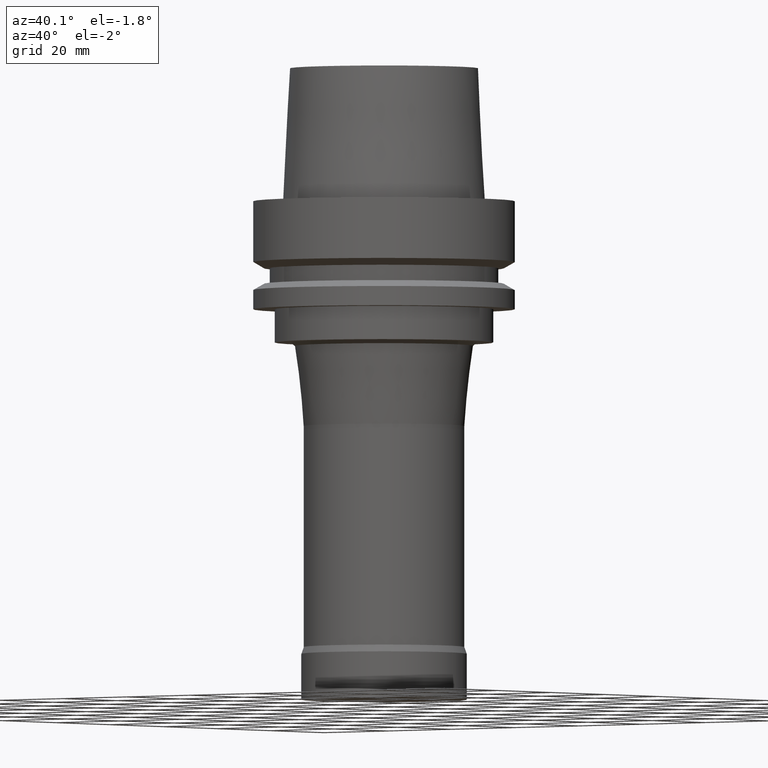
[diagram: clean part render]
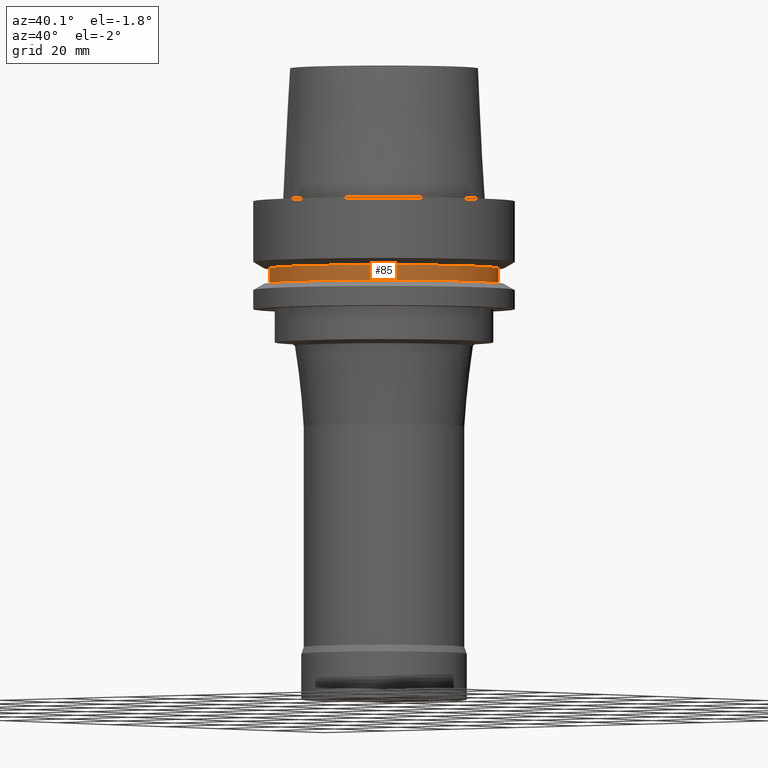
[diagram: same view with one face highlighted and labeled with its STEP entity id]
A machine part, auxiliary view. The second image highlights one B-rep face of the part: STEP entity #85.
In plain terms, the highlighted cylindrical surface (bore or boss wall) has radius 27.5 mm, axis along (-0, -0, 1).
Its self-contained STEP definition (entity closure, byte-faithful):
#85=ADVANCED_FACE('',(#125,#126),#127,.T.);
#125=FACE_BOUND('',#183,.T.);
#126=FACE_BOUND('',#184,.T.);
#127=CYLINDRICAL_SURFACE('',#185,27.5);
#183=EDGE_LOOP('',(#261));
#184=EDGE_LOOP('',(#262));
#185=AXIS2_PLACEMENT_3D('',#263,#264,#265);
#261=ORIENTED_EDGE('',*,*,#321,.F.);
#262=ORIENTED_EDGE('',*,*,#320,.T.);
#263=CARTESIAN_POINT('',(1.10218211923262E-015,2.20436423846524E-015,-18.0));
#264=DIRECTION('',(-6.12323399573677E-017,-1.22464679914735E-016,1.0));
#265=DIRECTION('',(-1.23259516440783E-032,1.0,1.22464679914735E-016));
#320=EDGE_CURVE('',#349,#349,#350,.T.);
#321=EDGE_CURVE('',#351,#351,#352,.T.);
#349=VERTEX_POINT('',#387);
#350=CIRCLE('',#388,27.5);
#351=VERTEX_POINT('',#389);
#352=CIRCLE('',#390,27.5);
#387=CARTESIAN_POINT('',(9.87371481812553E-016,27.5,-16.125));
#388=AXIS2_PLACEMENT_3D('',#435,#436,#437);
#389=CARTESIAN_POINT('',(1.21699275665268E-015,27.5,-19.875));
#390=AXIS2_PLACEMENT_3D('',#438,#439,#440);
#435=CARTESIAN_POINT('',(9.87371481812554E-016,1.97474296362511E-015,-16.125));
#436=DIRECTION('',(6.12323399573677E-017,1.22464679914735E-016,-1.0));
#437=DIRECTION('',(-1.23259516440783E-032,1.0,1.22464679914735E-016));
#438=CARTESIAN_POINT('',(1.21699275665268E-015,2.43398551330536E-015,-19.875));
#439=DIRECTION('',(6.12323399573677E-017,1.22464679914735E-016,-1.0));
#440=DIRECTION('',(-1.23259516440783E-032,1.0,1.22464679914735E-016));